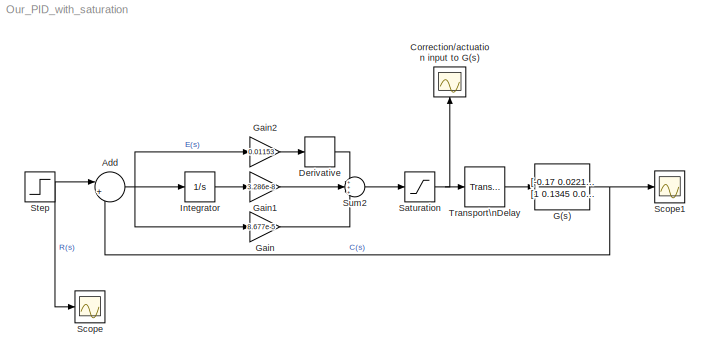
MODEL Our_PID_with_saturation
KIND model
BLOCK [Sum] Add
  Inputs = |+-
  Ports = [2, 1]
  SID = 1
BLOCK [Scope] Correction//actuation input to G(s)
  Floating = off
  NumInputPorts = 1
  Ports = [1]
  SID = 2
  ScopeSpecificationString = Simulink.scopes.TimeScopeBlockCfg('CurrentConfiguration', extmgr.ConfigurationSet(extmgr.Configuration('Core','General UI',true,'FigureColor',[1 1 1]),extmgr.Configuration('Core','Source UI',true),extmgr.Configuration('Sources','WiredSimulink',true,'DataLoggingVariableName','ScopeData2'),extmgr.Configuration('Visuals','Time Domain',true,'SerializedDisplays',{struct('MinYLimReal','-0.01655','MaxYLi...<+1483ch>
BLOCK [Derivative] Derivative
  SID = 28
BLOCK [TransferFcn] G(s)
  Denominator = [1 0.1345 0.003587 1.376e-5 6e-9]
  Numerator = [-0.17 0.0221 0.00068]
  SID = 44
BLOCK [Gain] Gain
  Gain = 8.677e-5
  SID = 25
BLOCK [Gain] Gain1
  Gain = 3.286e-8
  SID = 26
BLOCK [Gain] Gain2
  Gain = 0.01153
  SID = 27
BLOCK [Integrator] Integrator
  Ports = [1, 1]
  SID = 29
BLOCK [Saturate] Saturation
  LowerLimit = 0
  SID = 43
  UpperLimit = 2e-5
BLOCK [Scope] Scope
  Floating = off
  NumInputPorts = 1
  Ports = [1]
  SID = 5
  ScopeSpecificationString = Simulink.scopes.TimeScopeBlockCfg('CurrentConfiguration', extmgr.ConfigurationSet(extmgr.Configuration('Core','General UI',true),extmgr.Configuration('Core','Source UI',true),extmgr.Configuration('Sources','WiredSimulink',true),extmgr.Configuration('Visuals','Time Domain',true,'SerializedDisplays',{struct('MinYLimReal','0.9','MaxYLimReal','1.1','YLabelReal','','MinYLimMag','0.9','MaxYLimMag','1.1'...<+1290ch>
BLOCK [Scope] Scope1
  Floating = off
  NumInputPorts = 1
  Ports = [1]
  SID = 6
  ScopeSpecificationString = Simulink.scopes.TimeScopeBlockCfg('CurrentConfiguration', extmgr.ConfigurationSet(extmgr.Configuration('Core','General UI',true),extmgr.Configuration('Core','Source UI',true),extmgr.Configuration('Sources','WiredSimulink',true,'DataLoggingVariableName','ScopeData1'),extmgr.Configuration('Visuals','Time Domain',true,'SerializedDisplays',{struct('MinYLimReal','-0.14658','MaxYLimReal','1.31867','YLab...<+1736ch>
BLOCK [Step] Step
  SID = 7
  SampleTime = 0
  Time = 0
BLOCK [Sum] Sum2
  Inputs = +++
  Ports = [3, 1]
  SID = 34
BLOCK [TransportDelay] Transport\nDelay
  DelayTime = 8.5
  Ports = [1, 1]
  SID = 45
NET Add:1 -> Gain2:1, Gain:1, Integrator:1
LINE Derivative:1 -> Sum2:1
NET G(s):1 -> Add:2, Scope1:1
LINE Gain1:1 -> Sum2:2
LINE Gain2:1 -> Derivative:1
LINE Gain:1 -> Sum2:3
LINE Integrator:1 -> Gain1:1
NET Saturation:1 -> Correction//actuation input to G(s):1, Transport\nDelay:1
NET Step:1 -> Add:1, Scope:1
LINE Sum2:1 -> Saturation:1
LINE Transport\nDelay:1 -> G(s):1
note: NET lines group one-source signal fan-out (src -> all destinations, sorted); 1:1 wires keep LINE
